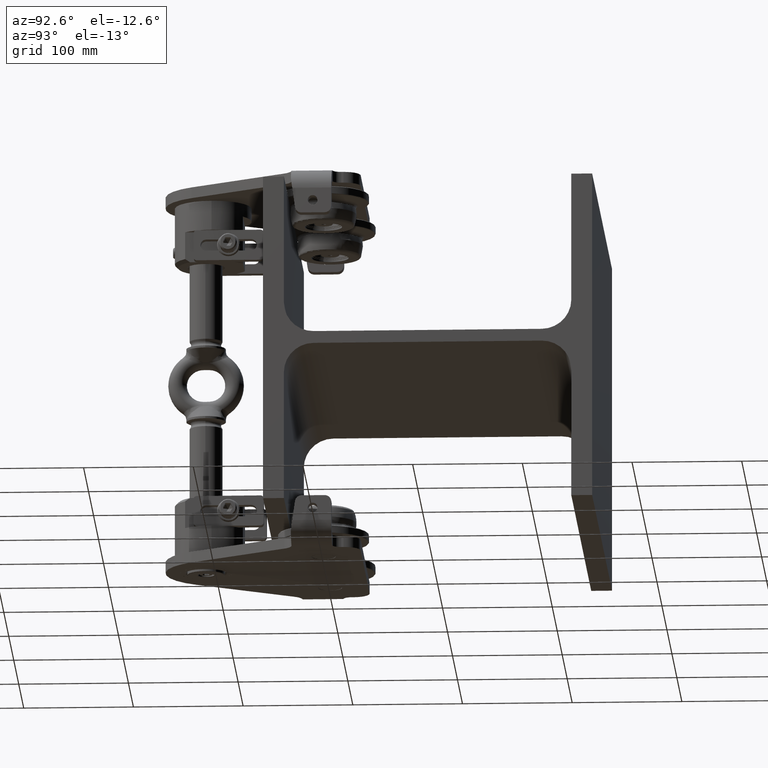
[diagram: clean part render]
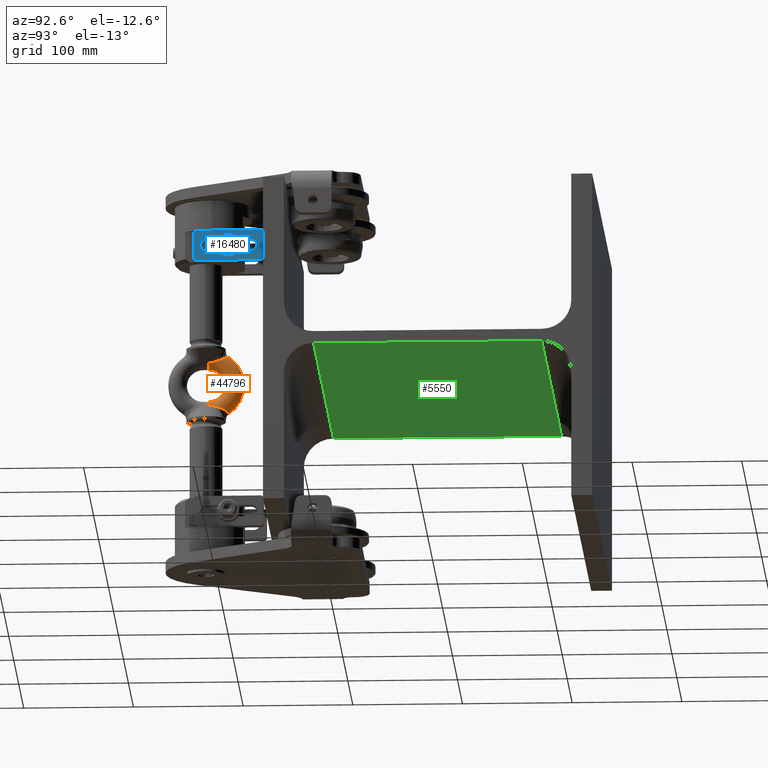
[diagram: same view with three faces highlighted in distinct colors, each labeled with its STEP entity id]
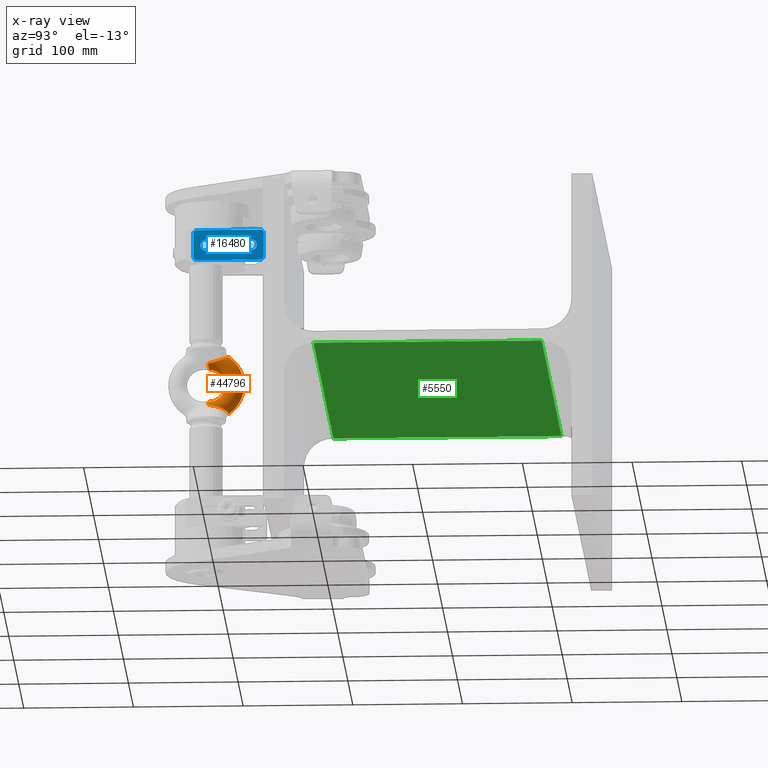
[diagram: x-ray of the same camera — body ghosted, the three highlighted faces saturated]
A machine part, auxiliary view with three faces highlighted in distinct colors.
The next image is the same camera in x-ray (body ghosted, the three faces saturated) — at least one of them is partly hidden behind the body in this view.
Their STEP definitions:

[orange] entity #44796 — the highlighted toroidal blend (fillet) surface has major radius 23.5 mm and minor (blend) radius 8.5 mm.
#1189 = CARTESIAN_POINT ( 'NONE',  ( 7.707850285550996700, -206.2795109305813800, 19.79835566781942200 ) ) ;
#2329 = CARTESIAN_POINT ( 'NONE',  ( 8.461707026444758000, -197.7828523068499500, -22.16352645544186100 ) ) ;
#2442 = EDGE_CURVE ( 'NONE', #52290, #14881, #14909, .T. ) ;
#2768 = CARTESIAN_POINT ( 'NONE',  ( 2.284822189020698300, -190.6046149225601300, 26.16565341312685800 ) ) ;
#2840 = CARTESIAN_POINT ( 'NONE',  ( 7.607863819434923500, -207.3867773818504600, -19.68353115087417700 ) ) ;
#2944 = DIRECTION ( 'NONE',  ( -1.000000000000000000, -1.203706215242022400E-035, 7.342992169604158900E-020 ) ) ;
#2959 = CARTESIAN_POINT ( 'NONE',  ( 7.760297345767523500, -194.9560003260342000, 23.34853522374440600 ) ) ;
#4085 = DIRECTION ( 'NONE',  ( -1.000000000000000000, -1.203706215242022400E-035, 7.342992169604158900E-020 ) ) ;
#4311 = ORIENTED_EDGE ( 'NONE', *, *, #20379, .T. ) ;
#5489 = EDGE_CURVE ( 'NONE', #46391, #34175, #39681, .T. ) ;
#5500 = CARTESIAN_POINT ( 'NONE',  ( 7.559127262799666600, -208.5000000000005100, -19.61289374665441400 ) ) ;
#5707 = CARTESIAN_POINT ( 'NONE',  ( 8.436953892678303600, -200.9275025059992900, 21.09512670447992400 ) ) ;
#5783 = CARTESIAN_POINT ( 'NONE',  ( -3.202246416233970800E-014, -208.4999999999997400, 15.00000000000000000 ) ) ;
#6058 = ORIENTED_EDGE ( 'NONE', *, *, #33570, .T. ) ;
#6083 = CARTESIAN_POINT ( 'NONE',  ( 6.424268037674616000, -192.8447427148352900, -24.51024583028979000 ) ) ;
#6317 = ORIENTED_EDGE ( 'NONE', *, *, #22510, .T. ) ;
#6598 = CARTESIAN_POINT ( 'NONE',  ( 6.424624547607263200, -192.8448221214622400, 24.51014663231686100 ) ) ;
#7116 = DIRECTION ( 'NONE',  ( 7.342992169607719500E-020, 0.0000000000000000000, 1.000000000000000000 ) ) ;
#7131 = CARTESIAN_POINT ( 'NONE',  ( 8.033546829603659800, -195.7640833720828700, 22.98436222492714600 ) ) ;
#8651 = FACE_OUTER_BOUND ( 'NONE', #39619, .T. ) ;
#9568 = CARTESIAN_POINT ( 'NONE',  ( 8.033546829603659800, -195.7640833720828700, 22.98436222492714600 ) ) ;
#9804 = CARTESIAN_POINT ( 'NONE',  ( -3.306513954477481600E-014, -208.5000000000006300, -23.50000000000000000 ) ) ;
#10304 = CARTESIAN_POINT ( 'NONE',  ( 3.597265866760468400, -190.9428338391780100, -25.85972113450395000 ) ) ;
#10419 = ORIENTED_EDGE ( 'NONE', *, *, #37580, .F. ) ;
#10724 = CARTESIAN_POINT ( 'NONE',  ( 8.033546829603000800, -195.7640833720806500, -22.98436222492809800 ) ) ;
#11012 = CARTESIAN_POINT ( 'NONE',  ( 6.697227980186744900, -193.1597510625184700, 24.31733256276097100 ) ) ;
#11082 = CARTESIAN_POINT ( 'NONE',  ( 7.707665712135255200, -206.2812893182501700, -19.79814650362216000 ) ) ;
#11188 = CARTESIAN_POINT ( 'NONE',  ( 0.4638226216663979300, -190.3872970200485200, 26.38048503648214900 ) ) ;
#11559 = CARTESIAN_POINT ( 'NONE',  ( 3.779516363432350100, -191.0586105662924900, 25.76940616030519500 ) ) ;
#11674 = CARTESIAN_POINT ( 'NONE',  ( -3.202246416233970800E-014, -208.4999999999999700, -4.634420540064284200E-035 ) ) ;
#11921 = TOROIDAL_SURFACE ( 'NONE', #44481, 23.50000000000000000, 8.500000000000000000 ) ;
#13793 = CARTESIAN_POINT ( 'NONE',  ( 8.461781882911749300, -197.7835795734068300, 22.16325586094200900 ) ) ;
#14145 = CARTESIAN_POINT ( 'NONE',  ( 8.012117313590074700, -204.1073115485296800, 20.18206153499028200 ) ) ;
#14329 = CARTESIAN_POINT ( 'NONE',  ( 8.498110677027209900, -199.8708133733495100, 21.43922223185030500 ) ) ;
#14351 = CARTESIAN_POINT ( 'NONE',  ( 0.4632860262234953500, -190.3872970200485500, -26.38048503648214900 ) ) ;
#14476 = B_SPLINE_CURVE_WITH_KNOTS ( 'NONE', 3,
 ( #34651, #21989, #18513, #39493, #51928, #43841, #6083, #30811, #39134, #39676, #10304, #47744, #14693, #43289, #14351, #47565 ),
 .UNSPECIFIED., .F., .F.,
 ( 4, 2, 2, 2, 2, 2, 2, 4 ),
 ( 0.0000000000000000000, 0.001382745869638140300, 0.002765491739276280500, 0.004148237608914420600, 0.005530983478552561000, 0.008296475217828886200, 0.009679221087467047500, 0.01106196695710521100 ),
 .UNSPECIFIED. ) ;
#14536 = EDGE_CURVE ( 'NONE', #52290, #53624, #23174, .T. ) ;
#14693 = CARTESIAN_POINT ( 'NONE',  ( 1.834805980854447200, -190.5222945162019200, -26.24552866953802900 ) ) ;
#14881 = VERTEX_POINT ( 'NONE', #31368 ) ;
#14909 = CIRCLE ( 'NONE', #52857, 32.00000000000000000 ) ;
#15090 = CARTESIAN_POINT ( 'NONE',  ( 7.774365471925039000, -205.7304301315866200, -19.87248625893937900 ) ) ;
#16871 = ORIENTED_EDGE ( 'NONE', *, *, #2442, .F. ) ;
#16959 = CARTESIAN_POINT ( 'NONE',  ( -3.306168833845509700E-014, -208.4999999999996300, 23.50000000000000000 ) ) ;
#17128 = DIRECTION ( 'NONE',  ( -1.000000000000000000, 0.0000000000000000000, 0.0000000000000000000 ) ) ;
#18185 = VERTEX_POINT ( 'NONE', #46360 ) ;
#18513 = CARTESIAN_POINT ( 'NONE',  ( 7.760995064850512800, -194.9581457116780400, -23.34756826584101200 ) ) ;
#18928 = CARTESIAN_POINT ( 'NONE',  ( 7.926675991449847000, -204.6439283190277900, -20.06417413808363300 ) ) ;
#19272 = CARTESIAN_POINT ( 'NONE',  ( -3.202246416233970800E-014, -208.5000000000003700, -15.00000000000000000 ) ) ;
#19458 = CARTESIAN_POINT ( 'NONE',  ( 7.559127262799666600, -208.5000000000005100, -19.61289374665441400 ) ) ;
#20379 = EDGE_CURVE ( 'NONE', #35116, #46391, #39318, .T. ) ;
#20658 = CARTESIAN_POINT ( 'NONE',  ( -3.306341394161495700E-014, -208.4999999999999700, 3.009265538105055500E-035 ) ) ;
#21008 = EDGE_CURVE ( 'NONE', #53624, #18185, #35385, .T. ) ;
#21989 = CARTESIAN_POINT ( 'NONE',  ( 7.910971438573376700, -195.3531564083170600, -23.16204793979206400 ) ) ;
#22138 = CARTESIAN_POINT ( 'NONE',  ( 7.926745514533133800, -204.6435101297811300, 20.06427242854204000 ) ) ;
#22510 = EDGE_CURVE ( 'NONE', #34175, #14881, #14476, .T. ) ;
#23174 = B_SPLINE_CURVE_WITH_KNOTS ( 'NONE', 3,
 ( #36390, #11188, #31511, #27694, #2768, #52427, #31691, #40203, #11559, #48790, #35840, #44548, #48603, #44368, #23717, #6598, #11012, #27363, #39827, #2959, #32031, #7131 ),
 .UNSPECIFIED., .F., .F.,
 ( 4, 2, 2, 2, 2, 2, 2, 2, 2, 2, 4 ),
 ( 0.01106196695710846700, 0.01244631437544509900, 0.01383066179378173100, 0.01452283550295004400, 0.01521500921211835900, 0.01659935663045496200, 0.01729153033962323900, 0.01798370404879151600, 0.01936805146712807000, 0.02075239888546463000, 0.02213674630380118400 ),
 .UNSPECIFIED. ) ;
#23431 = CARTESIAN_POINT ( 'NONE',  ( 8.385914111975404600, -201.4566420781090700, -20.92729236923323200 ) ) ;
#23717 = CARTESIAN_POINT ( 'NONE',  ( 5.966247978091051800, -192.4058037192779100, 24.79257777139406500 ) ) ;
#24179 = DIRECTION ( 'NONE',  ( 7.342992169588460200E-020, 0.0000000000000000000, 1.000000000000000000 ) ) ;
#24756 = DIRECTION ( 'NONE',  ( 1.046546736256561500E-033, -1.000000000000000000, 1.408839407981976600E-014 ) ) ;
#25817 = AXIS2_PLACEMENT_3D ( 'NONE', #16959, #24756, #17128 ) ;
#25922 = ORIENTED_EDGE ( 'NONE', *, *, #14536, .T. ) ;
#26115 = CARTESIAN_POINT ( 'NONE',  ( 8.176983259097326600, -203.0428472266685800, 20.45342395409431900 ) ) ;
#26298 = CARTESIAN_POINT ( 'NONE',  ( 7.559127262799690600, -208.4999999999996900, 19.61289374665446400 ) ) ;
#26533 = DIRECTION ( 'NONE',  ( -2.081056410360702800E-033, 1.000000000000000000, -2.817678815963953200E-014 ) ) ;
#26650 = CARTESIAN_POINT ( 'NONE',  ( 8.255971919958440700, -202.5143028319920100, 20.60612517120837900 ) ) ;
#27363 = CARTESIAN_POINT ( 'NONE',  ( 7.182092030082966300, -193.8336366515572700, 23.92914444497929000 ) ) ;
#27694 = CARTESIAN_POINT ( 'NONE',  ( 1.840423457576873600, -190.5231337964220900, 26.24470857406115000 ) ) ;
#28741 = DIRECTION ( 'NONE',  ( -1.000000000000000000, -1.203706215242022400E-035, 7.342992169604158900E-020 ) ) ;
#28763 = CARTESIAN_POINT ( 'NONE',  ( 8.033546829603659800, -195.7640833720828700, 22.98436222492714600 ) ) ;
#30288 = CARTESIAN_POINT ( 'NONE',  ( 7.607898068798507800, -207.3861324900536300, 19.68357328288471200 ) ) ;
#30616 = CARTESIAN_POINT ( 'NONE',  ( 8.508368360528280000, -199.3457429328596800, 21.61565742733653300 ) ) ;
#30787 = CARTESIAN_POINT ( 'NONE',  ( 7.574460406512447900, -207.9419785348058000, 19.64271160526426000 ) ) ;
#30811 = CARTESIAN_POINT ( 'NONE',  ( 5.818263074134496700, -192.2638083863342600, -24.88387903601083200 ) ) ;
#31368 = CARTESIAN_POINT ( 'NONE',  ( -3.570247402330866700E-014, -190.3872970200485500, -26.38048503648216300 ) ) ;
#31379 = CARTESIAN_POINT ( 'NONE',  ( -3.351453821115613200E-014, -190.3872970200485500, 26.38048503648216000 ) ) ;
#31395 = CARTESIAN_POINT ( 'NONE',  ( 8.012103469725692800, -204.1074035488994700, -20.18203515796615500 ) ) ;
#31511 = CARTESIAN_POINT ( 'NONE',  ( 0.9293989636728042800, -190.4142390644673200, 26.35245626647346000 ) ) ;
#31691 = CARTESIAN_POINT ( 'NONE',  ( 3.148586283546853900, -190.8352792530225800, 25.95833939416879200 ) ) ;
#32005 = CIRCLE ( 'NONE', #37406, 15.00000000000000000 ) ;
#32031 = CARTESIAN_POINT ( 'NONE',  ( 7.910821924883982200, -195.3526551722537200, 23.16226467535842200 ) ) ;
#33570 = EDGE_CURVE ( 'NONE', #53906, #35116, #32005, .T. ) ;
#34175 = VERTEX_POINT ( 'NONE', #38536 ) ;
#34651 = CARTESIAN_POINT ( 'NONE',  ( 8.033546829603000800, -195.7640833720806500, -22.98436222492809800 ) ) ;
#35116 = VERTEX_POINT ( 'NONE', #19272 ) ;
#35385 = B_SPLINE_CURVE_WITH_KNOTS ( 'NONE', 3,
 ( #9568, #51544, #13793, #30616, #14329, #5707, #38601, #26650, #26115, #14145, #22138, #51191, #1189, #30288, #30787, #26298 ),
 .UNSPECIFIED., .F., .F.,
 ( 4, 2, 2, 2, 2, 2, 2, 4 ),
 ( 0.0000000000000000000, 0.003371336602413093300, 0.005057004903619641300, 0.006742673204826189200, 0.008428341506032737200, 0.01011400980723928400, 0.01179967810844583500, 0.01348534640965238200 ),
 .UNSPECIFIED. ) ;
#35396 = CARTESIAN_POINT ( 'NONE',  ( 8.256039911982856700, -202.5138287852701900, -20.60626332106556500 ) ) ;
#35515 = ORIENTED_EDGE ( 'NONE', *, *, #5489, .T. ) ;
#35840 = CARTESIAN_POINT ( 'NONE',  ( 4.765762826314307300, -191.5250945415065500, 25.40303718732126700 ) ) ;
#36093 = CARTESIAN_POINT ( 'NONE',  ( 8.437016275276345600, -200.9267678174681500, -21.09536054762204000 ) ) ;
#36390 = CARTESIAN_POINT ( 'NONE',  ( -3.351453821115613200E-014, -190.3872970200485500, 26.38048503648216000 ) ) ;
#36704 = ORIENTED_EDGE ( 'NONE', *, *, #21008, .T. ) ;
#37406 = AXIS2_PLACEMENT_3D ( 'NONE', #11674, #28741, #24179 ) ;
#37580 = EDGE_CURVE ( 'NONE', #53906, #18185, #40829, .T. ) ;
#38536 = CARTESIAN_POINT ( 'NONE',  ( 8.033546829603000800, -195.7640833720806500, -22.98436222492809800 ) ) ;
#38601 = CARTESIAN_POINT ( 'NONE',  ( 8.385842717910392700, -201.4573025604643100, 20.92708601020806500 ) ) ;
#38835 = DIRECTION ( 'NONE',  ( -1.000000000000000000, 0.0000000000000000000, 0.0000000000000000000 ) ) ;
#39134 = CARTESIAN_POINT ( 'NONE',  ( 5.482589876937562500, -191.9959812510612700, -25.06598573410321200 ) ) ;
#39318 = CIRCLE ( 'NONE', #45033, 8.500000000000000000 ) ;
#39493 = CARTESIAN_POINT ( 'NONE',  ( 7.398558151568961300, -194.2010227091647600, -23.72952647949294300 ) ) ;
#39547 = CARTESIAN_POINT ( 'NONE',  ( 8.508370039768621500, -199.3449088361205100, -21.61594198959723600 ) ) ;
#39619 = EDGE_LOOP ( 'NONE', ( #16871, #25922, #36704, #10419, #6058, #4311, #35515, #6317 ) ) ;
#39676 = CARTESIAN_POINT ( 'NONE',  ( 4.397823346135387700, -191.2835287970183900, -25.57597263185256200 ) ) ;
#39681 = B_SPLINE_CURVE_WITH_KNOTS ( 'NONE', 3,
 ( #19458, #43896, #2840, #11082, #15090, #18928, #31395, #48491, #35396, #23431, #36093, #44440, #39547, #2329, #44087, #10724 ),
 .UNSPECIFIED., .F., .F.,
 ( 4, 2, 2, 2, 2, 2, 2, 4 ),
 ( 0.0000000000000000000, 0.001673460226891952400, 0.003346920453783904700, 0.005020380680675857300, 0.006693840907567809500, 0.008367301134459763400, 0.01004076136135171500, 0.01338768181513562200 ),
 .UNSPECIFIED. ) ;
#39827 = CARTESIAN_POINT ( 'NONE',  ( 7.394690100199275300, -194.1936389472105000, 23.73336829731612600 ) ) ;
#40203 = CARTESIAN_POINT ( 'NONE',  ( 3.570518359232237600, -190.9783858210139200, 25.83608058414634100 ) ) ;
#40829 = CIRCLE ( 'NONE', #25817, 8.500000000000000000 ) ;
#43289 = CARTESIAN_POINT ( 'NONE',  ( 0.9269487715850230900, -190.4141155146193700, -26.35258895159038800 ) ) ;
#43841 = CARTESIAN_POINT ( 'NONE',  ( 6.696812826309765900, -193.1590402379814300, -24.31771801360253700 ) ) ;
#43896 = CARTESIAN_POINT ( 'NONE',  ( 7.574453641674462100, -207.9422247285980900, -19.64269844990706600 ) ) ;
#44087 = CARTESIAN_POINT ( 'NONE',  ( 8.330585538749051700, -196.7589120197124000, -22.55323274130671500 ) ) ;
#44368 = CARTESIAN_POINT ( 'NONE',  ( 5.805078535749725400, -192.2651543664985600, 24.88557040155885100 ) ) ;
#44440 = CARTESIAN_POINT ( 'NONE',  ( 8.498138546864954200, -199.8699881405804900, -21.43949636248286000 ) ) ;
#44481 = AXIS2_PLACEMENT_3D ( 'NONE', #20658, #4085, #50264 ) ;
#44548 = CARTESIAN_POINT ( 'NONE',  ( 5.300197666609313400, -191.8762346662147100, 25.15171170250655300 ) ) ;
#44796 = ADVANCED_FACE ( 'NONE', ( #8651 ), #11921, .T. ) ;
#45033 = AXIS2_PLACEMENT_3D ( 'NONE', #9804, #26533, #38835 ) ;
#46360 = CARTESIAN_POINT ( 'NONE',  ( 7.559127262799690600, -208.4999999999996900, 19.61289374665446400 ) ) ;
#46391 = VERTEX_POINT ( 'NONE', #5500 ) ;
#47565 = CARTESIAN_POINT ( 'NONE',  ( -3.570247402330866700E-014, -190.3872970200485500, -26.38048503648216300 ) ) ;
#47744 = CARTESIAN_POINT ( 'NONE',  ( 2.283317817531000000, -190.6040629296119000, -26.16612557632001000 ) ) ;
#48491 = CARTESIAN_POINT ( 'NONE',  ( 8.177037225213675600, -203.0424961745444000, -20.45351637153337500 ) ) ;
#48603 = CARTESIAN_POINT ( 'NONE',  ( 5.472439830083895500, -192.0007610233920400, 25.06488655157053800 ) ) ;
#48790 = CARTESIAN_POINT ( 'NONE',  ( 4.385950768222283400, -191.3208829996390000, 25.55853810899910900 ) ) ;
#50264 = DIRECTION ( 'NONE',  ( 7.342992169604158900E-020, -4.285883114025955000E-067, 1.000000000000000000 ) ) ;
#51191 = CARTESIAN_POINT ( 'NONE',  ( 7.774547543605637000, -205.7290537067475800, 19.87270462672605100 ) ) ;
#51544 = CARTESIAN_POINT ( 'NONE',  ( 8.330479298749267500, -196.7585562054978300, 22.55338694072500200 ) ) ;
#51928 = CARTESIAN_POINT ( 'NONE',  ( 7.184014511383518100, -193.8364428413114500, -23.92755204483577500 ) ) ;
#52290 = VERTEX_POINT ( 'NONE', #31379 ) ;
#52407 = CARTESIAN_POINT ( 'NONE',  ( -3.306341394161495700E-014, -208.4999999999999700, 3.009265538105055500E-035 ) ) ;
#52427 = CARTESIAN_POINT ( 'NONE',  ( 2.934741154244201700, -190.7719361114720300, 26.01427774808154300 ) ) ;
#52857 = AXIS2_PLACEMENT_3D ( 'NONE', #52407, #2944, #7116 ) ;
#53624 = VERTEX_POINT ( 'NONE', #28763 ) ;
#53906 = VERTEX_POINT ( 'NONE', #5783 ) ;

[blue] entity #16480 — the highlighted planar face has unit normal (1, -0, 0).
#91 = DIRECTION ( 'NONE',  ( -1.000000000000000000, 0.0000000000000000000, 0.0000000000000000000 ) ) ;
#112 = CARTESIAN_POINT ( 'NONE',  ( 32.99999999999995700, -168.4999999999999100, 123.9999999999998300 ) ) ;
#333 = VERTEX_POINT ( 'NONE', #45865 ) ;
#850 = EDGE_CURVE ( 'NONE', #12740, #50089, #46005, .T. ) ;
#1257 = FACE_OUTER_BOUND ( 'NONE', #3432, .T. ) ;
#1773 = VECTOR ( 'NONE', #16678, 1000.000000000000000 ) ;
#2117 = VECTOR ( 'NONE', #50938, 1000.000000000000000 ) ;
#2418 = CIRCLE ( 'NONE', #10358, 5.250000000000004400 ) ;
#2500 = DIRECTION ( 'NONE',  ( 0.0000000000000000000, 5.551115123125781500E-017, -1.000000000000000000 ) ) ;
#3432 = EDGE_LOOP ( 'NONE', ( #46790, #12379, #40189, #22315, #44037, #53663, #12280, #19347 ) ) ;
#3731 = EDGE_CURVE ( 'NONE', #13965, #6824, #22625, .T. ) ;
#3996 = CARTESIAN_POINT ( 'NONE',  ( 32.99999999999995700, -217.9999999999999400, 134.9999999999998300 ) ) ;
#4249 = CARTESIAN_POINT ( 'NONE',  ( 32.99999999999995700, -209.4999999999999700, 129.2499999999998300 ) ) ;
#4691 = CIRCLE ( 'NONE', #7932, 5.250000000000004400 ) ;
#5414 = LINE ( 'NONE', #18060, #2117 ) ;
#6738 = EDGE_CURVE ( 'NONE', #50089, #45655, #4691, .T. ) ;
#6807 = EDGE_CURVE ( 'NONE', #29827, #20316, #30705, .T. ) ;
#6824 = VERTEX_POINT ( 'NONE', #46482 ) ;
#7932 = AXIS2_PLACEMENT_3D ( 'NONE', #112, #29247, #29791 ) ;
#8259 = CARTESIAN_POINT ( 'NONE',  ( 32.99999999999995700, -217.9999999999999400, 137.9999999999998600 ) ) ;
#8565 = DIRECTION ( 'NONE',  ( 0.0000000000000000000, 1.000000000000000000, -2.406611495452702400E-016 ) ) ;
#9184 = CIRCLE ( 'NONE', #52316, 3.000000000000002700 ) ;
#9792 = VERTEX_POINT ( 'NONE', #52894 ) ;
#10358 = AXIS2_PLACEMENT_3D ( 'NONE', #23564, #53393, #52656 ) ;
#11631 = CARTESIAN_POINT ( 'NONE',  ( 32.99999999999995700, -217.9999999999999400, 112.9999999999998300 ) ) ;
#12162 = EDGE_CURVE ( 'NONE', #41501, #29827, #42979, .T. ) ;
#12280 = ORIENTED_EDGE ( 'NONE', *, *, #14224, .F. ) ;
#12379 = ORIENTED_EDGE ( 'NONE', *, *, #6807, .F. ) ;
#12422 = DIRECTION ( 'NONE',  ( 0.0000000000000000000, 5.551115123125781500E-017, -1.000000000000000000 ) ) ;
#12740 = VERTEX_POINT ( 'NONE', #4249 ) ;
#13171 = AXIS2_PLACEMENT_3D ( 'NONE', #11631, #40622, #53601 ) ;
#13822 = EDGE_CURVE ( 'NONE', #333, #9792, #9184, .T. ) ;
#13965 = VERTEX_POINT ( 'NONE', #16783 ) ;
#14224 = EDGE_CURVE ( 'NONE', #6824, #28545, #29930, .T. ) ;
#14830 = VECTOR ( 'NONE', #8565, 1000.000000000000000 ) ;
#15778 = ORIENTED_EDGE ( 'NONE', *, *, #30804, .T. ) ;
#16056 = CARTESIAN_POINT ( 'NONE',  ( 32.99999999999995700, -159.9999999999999100, 112.9999999999998400 ) ) ;
#16480 = ADVANCED_FACE ( 'NONE', ( #1257, #53986 ), #20378, .T. ) ;
#16517 = CARTESIAN_POINT ( 'NONE',  ( 32.99999999999995700, -159.9999999999999100, 134.9999999999998300 ) ) ;
#16550 = DIRECTION ( 'NONE',  ( 0.0000000000000000000, -5.551115123125781500E-017, 1.000000000000000000 ) ) ;
#16678 = DIRECTION ( 'NONE',  ( 0.0000000000000000000, 1.000000000000000000, 5.551115123125782100E-017 ) ) ;
#16783 = CARTESIAN_POINT ( 'NONE',  ( 32.99999999999995700, -217.9999999999999400, 137.9999999999998600 ) ) ;
#17013 = ORIENTED_EDGE ( 'NONE', *, *, #6738, .T. ) ;
#17126 = EDGE_LOOP ( 'NONE', ( #27954, #17013, #30172, #15778 ) ) ;
#18060 = CARTESIAN_POINT ( 'NONE',  ( 32.99999999999995700, -217.9999999999999400, 109.9999999999998300 ) ) ;
#18347 = EDGE_CURVE ( 'NONE', #9792, #41501, #5414, .T. ) ;
#19347 = ORIENTED_EDGE ( 'NONE', *, *, #3731, .F. ) ;
#19371 = CARTESIAN_POINT ( 'NONE',  ( 32.99999999999995700, -217.9999999999999400, 109.9999999999998300 ) ) ;
#20144 = DIRECTION ( 'NONE',  ( 0.0000000000000000000, 0.0000000000000000000, -1.000000000000000000 ) ) ;
#20316 = VERTEX_POINT ( 'NONE', #50163 ) ;
#20378 = PLANE ( 'NONE',  #35277 ) ;
#21192 = AXIS2_PLACEMENT_3D ( 'NONE', #53985, #28879, #24522 ) ;
#21474 = DIRECTION ( 'NONE',  ( 0.0000000000000000000, -1.000000000000000000, 2.406611495452702400E-016 ) ) ;
#22121 = EDGE_CURVE ( 'NONE', #28545, #333, #29891, .T. ) ;
#22315 = ORIENTED_EDGE ( 'NONE', *, *, #18347, .F. ) ;
#22625 = LINE ( 'NONE', #8259, #1773 ) ;
#23564 = CARTESIAN_POINT ( 'NONE',  ( 32.99999999999995700, -209.4999999999999700, 123.9999999999998300 ) ) ;
#24039 = CARTESIAN_POINT ( 'NONE',  ( 32.99999999999995700, -168.4999999999999100, 129.2499999999998300 ) ) ;
#24522 = DIRECTION ( 'NONE',  ( 0.0000000000000000000, 0.0000000000000000000, -1.000000000000000000 ) ) ;
#26279 = VERTEX_POINT ( 'NONE', #50642 ) ;
#27417 = CARTESIAN_POINT ( 'NONE',  ( 32.99999999999995700, -156.9999999999999100, 112.9999999999998400 ) ) ;
#27954 = ORIENTED_EDGE ( 'NONE', *, *, #850, .T. ) ;
#28119 = LINE ( 'NONE', #38321, #47629 ) ;
#28499 = CARTESIAN_POINT ( 'NONE',  ( 32.99999999999995700, -168.4999999999999100, 129.2499999999998300 ) ) ;
#28545 = VERTEX_POINT ( 'NONE', #53350 ) ;
#28879 = DIRECTION ( 'NONE',  ( -1.000000000000000000, 0.0000000000000000000, 0.0000000000000000000 ) ) ;
#29247 = DIRECTION ( 'NONE',  ( -1.000000000000000000, 0.0000000000000000000, 0.0000000000000000000 ) ) ;
#29791 = DIRECTION ( 'NONE',  ( 0.0000000000000000000, 0.0000000000000000000, 1.000000000000000000 ) ) ;
#29827 = VERTEX_POINT ( 'NONE', #35594 ) ;
#29891 = LINE ( 'NONE', #27417, #53308 ) ;
#29930 = CIRCLE ( 'NONE', #37744, 3.000000000000002700 ) ;
#30172 = ORIENTED_EDGE ( 'NONE', *, *, #53796, .T. ) ;
#30705 = LINE ( 'NONE', #50505, #52164 ) ;
#30804 = EDGE_CURVE ( 'NONE', #26279, #12740, #2418, .T. ) ;
#35277 = AXIS2_PLACEMENT_3D ( 'NONE', #3996, #45784, #12422 ) ;
#35594 = CARTESIAN_POINT ( 'NONE',  ( 32.99999999999995700, -220.9999999999999400, 112.9999999999998300 ) ) ;
#36026 = EDGE_CURVE ( 'NONE', #20316, #13965, #41692, .T. ) ;
#36333 = DIRECTION ( 'NONE',  ( -1.000000000000000000, 0.0000000000000000000, 0.0000000000000000000 ) ) ;
#37744 = AXIS2_PLACEMENT_3D ( 'NONE', #16517, #91, #20144 ) ;
#38321 = CARTESIAN_POINT ( 'NONE',  ( 32.99999999999995700, -168.4999999999999100, 118.7499999999998300 ) ) ;
#40189 = ORIENTED_EDGE ( 'NONE', *, *, #12162, .F. ) ;
#40622 = DIRECTION ( 'NONE',  ( -1.000000000000000000, 0.0000000000000000000, 0.0000000000000000000 ) ) ;
#41501 = VERTEX_POINT ( 'NONE', #19371 ) ;
#41692 = CIRCLE ( 'NONE', #21192, 3.000000000000002700 ) ;
#42979 = CIRCLE ( 'NONE', #13171, 3.000000000000002700 ) ;
#44037 = ORIENTED_EDGE ( 'NONE', *, *, #13822, .F. ) ;
#44687 = DIRECTION ( 'NONE',  ( 0.0000000000000000000, 0.0000000000000000000, -1.000000000000000000 ) ) ;
#45655 = VERTEX_POINT ( 'NONE', #47255 ) ;
#45784 = DIRECTION ( 'NONE',  ( 1.000000000000000000, -0.0000000000000000000, 0.0000000000000000000 ) ) ;
#45865 = CARTESIAN_POINT ( 'NONE',  ( 32.99999999999995700, -156.9999999999999100, 112.9999999999998400 ) ) ;
#46005 = LINE ( 'NONE', #24039, #14830 ) ;
#46482 = CARTESIAN_POINT ( 'NONE',  ( 32.99999999999995700, -159.9999999999999100, 137.9999999999998600 ) ) ;
#46790 = ORIENTED_EDGE ( 'NONE', *, *, #36026, .F. ) ;
#47255 = CARTESIAN_POINT ( 'NONE',  ( 32.99999999999995700, -168.4999999999999100, 118.7499999999998300 ) ) ;
#47629 = VECTOR ( 'NONE', #21474, 1000.000000000000000 ) ;
#50089 = VERTEX_POINT ( 'NONE', #28499 ) ;
#50163 = CARTESIAN_POINT ( 'NONE',  ( 32.99999999999995700, -220.9999999999999400, 134.9999999999998300 ) ) ;
#50505 = CARTESIAN_POINT ( 'NONE',  ( 32.99999999999995700, -220.9999999999999400, 112.9999999999998300 ) ) ;
#50642 = CARTESIAN_POINT ( 'NONE',  ( 32.99999999999995700, -209.4999999999999700, 118.7499999999998400 ) ) ;
#50938 = DIRECTION ( 'NONE',  ( 0.0000000000000000000, -1.000000000000000000, -5.551115123125782100E-017 ) ) ;
#52164 = VECTOR ( 'NONE', #16550, 1000.000000000000000 ) ;
#52316 = AXIS2_PLACEMENT_3D ( 'NONE', #16056, #36333, #44687 ) ;
#52656 = DIRECTION ( 'NONE',  ( 0.0000000000000000000, 0.0000000000000000000, 1.000000000000000000 ) ) ;
#52894 = CARTESIAN_POINT ( 'NONE',  ( 32.99999999999995700, -159.9999999999999100, 109.9999999999998300 ) ) ;
#53308 = VECTOR ( 'NONE', #2500, 1000.000000000000000 ) ;
#53350 = CARTESIAN_POINT ( 'NONE',  ( 32.99999999999995700, -156.9999999999999100, 134.9999999999998300 ) ) ;
#53393 = DIRECTION ( 'NONE',  ( -1.000000000000000000, 0.0000000000000000000, 0.0000000000000000000 ) ) ;
#53601 = DIRECTION ( 'NONE',  ( 0.0000000000000000000, 0.0000000000000000000, -1.000000000000000000 ) ) ;
#53663 = ORIENTED_EDGE ( 'NONE', *, *, #22121, .F. ) ;
#53796 = EDGE_CURVE ( 'NONE', #45655, #26279, #28119, .T. ) ;
#53985 = CARTESIAN_POINT ( 'NONE',  ( 32.99999999999995700, -217.9999999999999400, 134.9999999999998300 ) ) ;
#53986 = FACE_BOUND ( 'NONE', #17126, .T. ) ;

[green] entity #5550 — the highlighted planar face has unit normal (0, 0, -1).
#449 = EDGE_CURVE ( 'NONE', #4390, #43680, #1798, .T. ) ;
#1798 = LINE ( 'NONE', #21550, #31051 ) ;
#2777 = CARTESIAN_POINT ( 'NONE',  ( -200.0000000000000000, -103.9999999999999300, -5.499999999999981300 ) ) ;
#3231 = DIRECTION ( 'NONE',  ( 0.0000000000000000000, 1.000000000000000000, 0.0000000000000000000 ) ) ;
#3429 = EDGE_CURVE ( 'NONE', #27041, #31489, #13000, .T. ) ;
#4390 = VERTEX_POINT ( 'NONE', #41188 ) ;
#5550 = ADVANCED_FACE ( 'NONE', ( #20223 ), #32102, .T. ) ;
#5643 = EDGE_CURVE ( 'NONE', #31489, #43680, #23785, .T. ) ;
#6964 = DIRECTION ( 'NONE',  ( 0.0000000000000000000, 1.000000000000000000, 0.0000000000000000000 ) ) ;
#8799 = DIRECTION ( 'NONE',  ( 1.000000000000000000, 0.0000000000000000000, 0.0000000000000000000 ) ) ;
#10074 = CARTESIAN_POINT ( 'NONE',  ( 200.0000000000000000, 103.9999999999998700, -5.499999999999976900 ) ) ;
#13000 = LINE ( 'NONE', #31897, #26621 ) ;
#13434 = EDGE_CURVE ( 'NONE', #27041, #4390, #48915, .T. ) ;
#18425 = EDGE_LOOP ( 'NONE', ( #18691, #31975, #43291, #34605 ) ) ;
#18653 = AXIS2_PLACEMENT_3D ( 'NONE', #36459, #27953, #19807 ) ;
#18691 = ORIENTED_EDGE ( 'NONE', *, *, #5643, .F. ) ;
#19807 = DIRECTION ( 'NONE',  ( -1.000000000000000000, 0.0000000000000000000, 0.0000000000000000000 ) ) ;
#20223 = FACE_OUTER_BOUND ( 'NONE', #18425, .T. ) ;
#21550 = CARTESIAN_POINT ( 'NONE',  ( -200.0000000000000000, 103.9999999999998700, -5.499999999999976900 ) ) ;
#23785 = LINE ( 'NONE', #24331, #50449 ) ;
#24331 = CARTESIAN_POINT ( 'NONE',  ( 200.0000000000000000, -103.9999999999999300, -5.499999999999981300 ) ) ;
#26621 = VECTOR ( 'NONE', #47751, 1000.000000000000000 ) ;
#27041 = VERTEX_POINT ( 'NONE', #47069 ) ;
#27953 = DIRECTION ( 'NONE',  ( 0.0000000000000000000, 0.0000000000000000000, -1.000000000000000000 ) ) ;
#31051 = VECTOR ( 'NONE', #8799, 1000.000000000000000 ) ;
#31489 = VERTEX_POINT ( 'NONE', #32702 ) ;
#31897 = CARTESIAN_POINT ( 'NONE',  ( -200.0000000000000000, -103.9999999999999300, -5.499999999999981300 ) ) ;
#31975 = ORIENTED_EDGE ( 'NONE', *, *, #3429, .F. ) ;
#32102 = PLANE ( 'NONE',  #18653 ) ;
#32702 = CARTESIAN_POINT ( 'NONE',  ( 200.0000000000000000, -103.9999999999999300, -5.499999999999981300 ) ) ;
#34605 = ORIENTED_EDGE ( 'NONE', *, *, #449, .T. ) ;
#36459 = CARTESIAN_POINT ( 'NONE',  ( -200.0000000000000000, -103.9999999999999300, -5.499999999999981300 ) ) ;
#41188 = CARTESIAN_POINT ( 'NONE',  ( -200.0000000000000000, 103.9999999999998700, -5.499999999999976900 ) ) ;
#43291 = ORIENTED_EDGE ( 'NONE', *, *, #13434, .T. ) ;
#43680 = VERTEX_POINT ( 'NONE', #10074 ) ;
#47069 = CARTESIAN_POINT ( 'NONE',  ( -200.0000000000000000, -103.9999999999999300, -5.499999999999981300 ) ) ;
#47618 = VECTOR ( 'NONE', #6964, 1000.000000000000000 ) ;
#47751 = DIRECTION ( 'NONE',  ( 1.000000000000000000, 0.0000000000000000000, 0.0000000000000000000 ) ) ;
#48915 = LINE ( 'NONE', #2777, #47618 ) ;
#50449 = VECTOR ( 'NONE', #3231, 1000.000000000000000 ) ;